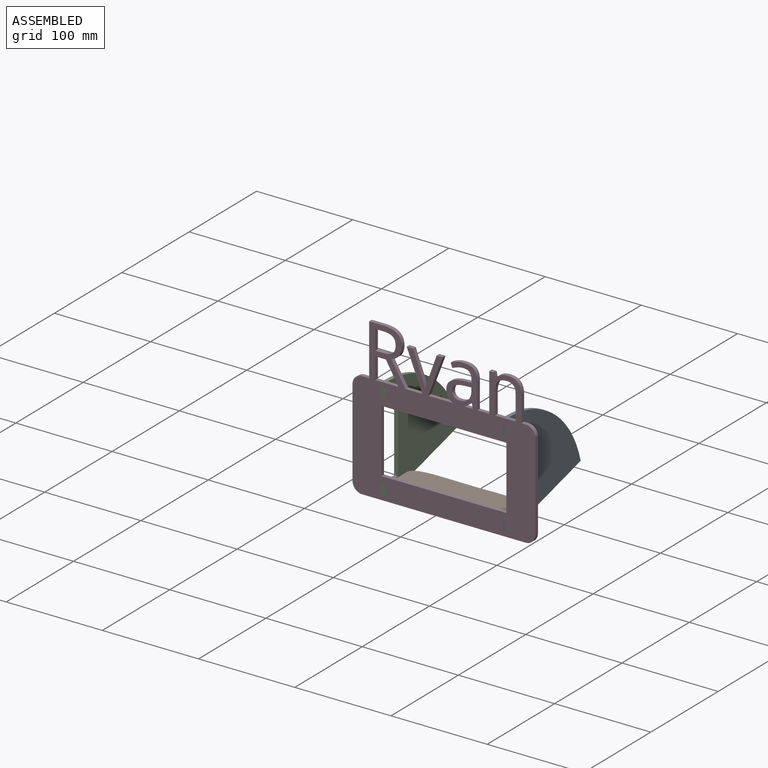
[diagram: assembled view]
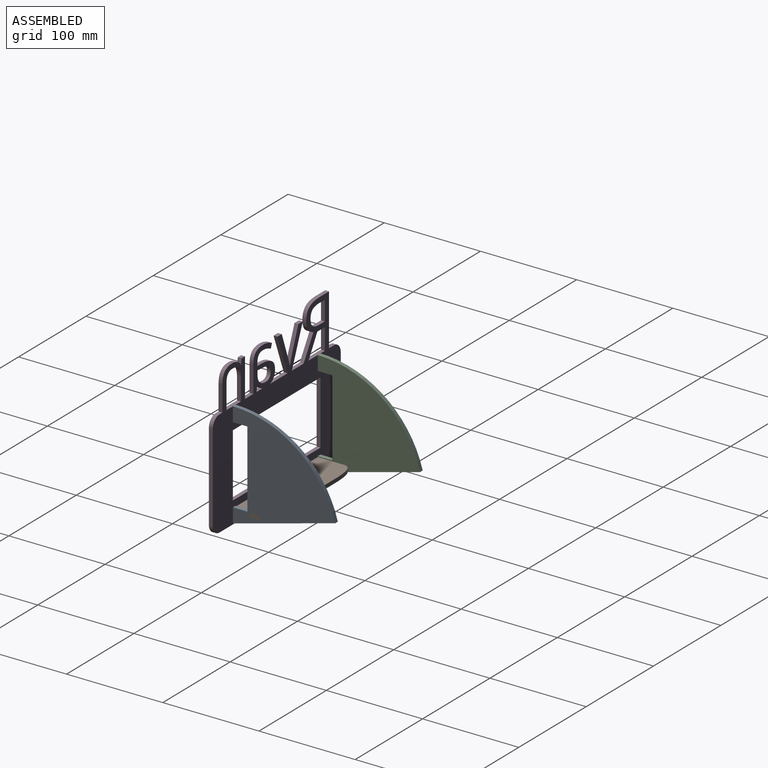
[diagram: assembled view, second angle]
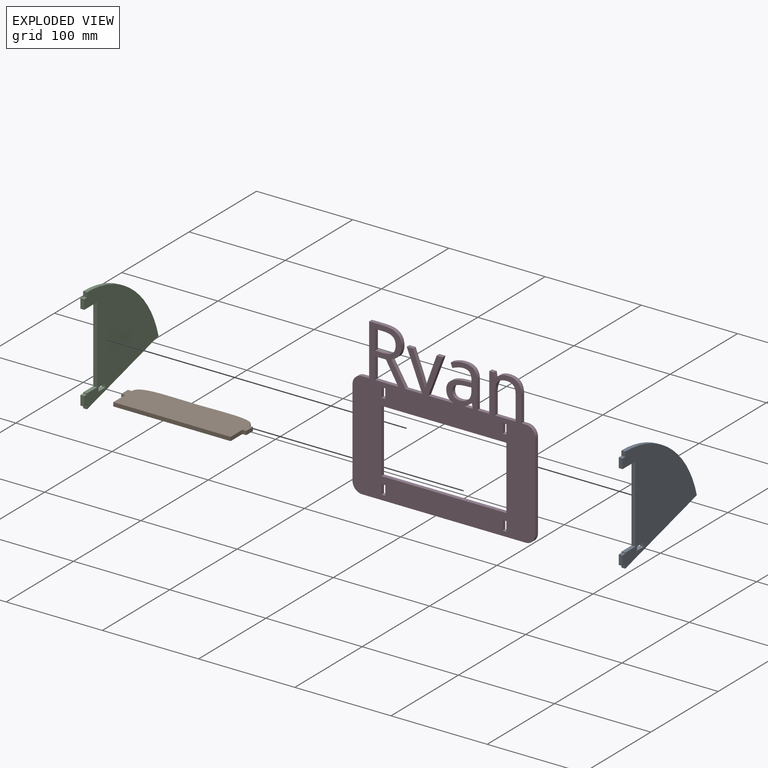
[diagram: exploded view]
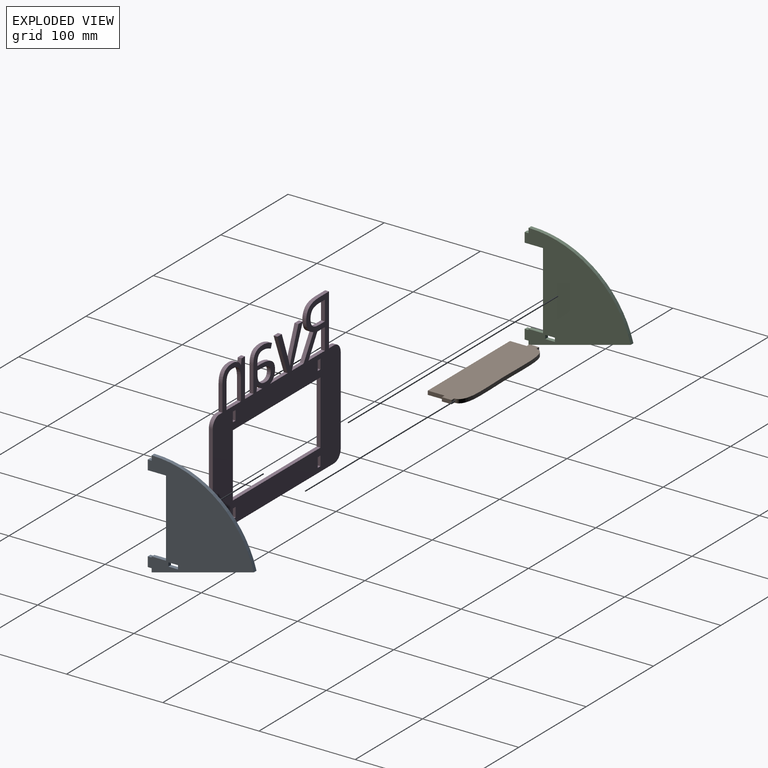
[diagram: exploded view, second angle]
ASSEMBLY  parts=4 mates=3
PART A: 19 faces, bbox 4x110.3x110 mm
  f0: plane 4x4mm, normal (0,1,0), area 16mm2, adj f1,f16,f17,f18
  f1: plane 10x4mm, normal (0,0,-1), area 40mm2, adj f0,f2,f17,f18
  f2: plane 4x4mm, normal (0,-1,0), area 16mm2, adj f1,f16,f17,f18
  f3: plane 4x4mm, normal (0,0,-1), area 16mm2, adj f4,f15,f17,f18
  f4: plane 4x4mm, normal (0,-1,0), area 16mm2, adj f3,f5,f17,f18
  f5: plane 106.25x28.47mm, normal (0,0.26,-0.97), area 440mm2, adj f4,f6,f17,f18
  f6: cylinder r=110mm len=106.25mm, axis (-1,0,0), area 576mm2, adj f5,f7,f17,f18
  f7: plane 5x4mm, normal (0,-1,0), area 20mm2, adj f6,f8,f17,f18
  f8: plane 4x4mm, normal (0,0,1), area 16mm2, adj f7,f9,f17,f18
  f9: plane 10x4mm, normal (0,-1,0), area 40mm2, adj f8,f10,f17,f18
  f10: plane 19x4mm, normal (0,0,-1), area 76mm2, adj f9,f11,f17,f18
  f11: plane 80x4mm, normal (0,-1,0), area 320mm2, adj f10,f12,f17,f18
  f12: plane 15x4mm, normal (0,0,1), area 60mm2, adj f11,f13,f17,f18
  f13: plane 4x1mm, normal (0,-1,0), area 4mm2, adj f12,f14,f17,f18
  f14: plane 4x4mm, normal (0,0,1), area 16mm2, adj f13,f15,f17,f18
  f15: plane 10x4mm, normal (0,-1,0), area 40mm2, adj f3,f14,f17,f18
  f16: plane 10x4mm, normal (0,0,1), area 40mm2, adj f0,f2,f17,f18
  f17: plane 110.25x110mm, normal (1,0,0), area 6759.4mm2, adj f0,f1,f2,f3,f4,f5,f6,f7
  f18: plane 110.25x110mm, normal (-1,0,0), area 6759.4mm2, adj f0,f1,f2,f3,f4,f5,f6,f7
PART B: 12 faces, bbox 130x41.1x4 mm
  f0: extruded ~122x10.17mm, area 524.1mm2, adj f1,f9,f10,f11
  f1: plane 4x4mm, normal (0,1,0), area 16mm2, adj f0,f2,f10,f11
  f2: plane 10x4mm, normal (-1,0,0), area 40mm2, adj f1,f3,f10,f11
  f3: plane 4x4mm, normal (0,-1,0), area 16mm2, adj f2,f4,f10,f11
  f4: plane 17.5x4mm, normal (-1,0,0), area 70mm2, adj f3,f5,f10,f11
  f5: plane 122x4mm, normal (0,-1,0), area 488mm2, adj f4,f6,f10,f11
  f6: plane 17.5x4mm, normal (1,0,0), area 70mm2, adj f5,f7,f10,f11
  f7: plane 4x4mm, normal (0,-1,0), area 16mm2, adj f6,f8,f10,f11
  f8: plane 10x4mm, normal (1,0,0), area 40mm2, adj f7,f9,f10,f11
  f9: plane 4x4mm, normal (0,1,0), area 16mm2, adj f0,f8,f10,f11
  f10: plane 130x41.09mm, normal (0,0,1), area 4555.9mm2, adj f0,f1,f2,f3,f4,f5,f6,f7
  f11: plane 130x41.09mm, normal (0,0,-1), area 4555.9mm2, adj f0,f1,f2,f3,f4,f5,f6,f7
PART C: same geometry as A
PART D: 103 faces, bbox 190x4x164.5 mm
  f0: plane 4x4mm, normal (0,0,1), area 16mm2, adj f1,f100,f101,f102
  f1: plane 10x4mm, normal (1,0,0), area 40mm2, adj f0,f2,f101,f102
  f2: plane 4x4mm, normal (0,0,-1), area 16mm2, adj f1,f100,f101,f102
  f3: plane 4x4mm, normal (0,0,1), area 16mm2, adj f4,f90,f101,f102
  f4: plane 10x4mm, normal (1,0,0), area 40mm2, adj f3,f5,f101,f102
  f5: plane 4x4mm, normal (0,0,-1), area 16mm2, adj f4,f90,f101,f102
  f6: plane 10x4mm, normal (1,0,0), area 40mm2, adj f7,f91,f101,f102
  f7: plane 4x4mm, normal (0,0,-1), area 16mm2, adj f6,f8,f101,f102
  f8: plane 10x4mm, normal (-1,0,0), area 40mm2, adj f7,f91,f101,f102
  f9: plane 10x4mm, normal (1,0,0), area 40mm2, adj f10,f92,f101,f102
  f10: plane 4x4mm, normal (0,0,-1), area 16mm2, adj f9,f11,f101,f102
  f11: plane 10x4mm, normal (-1,0,0), area 40mm2, adj f10,f92,f101,f102
  f12: plane 66x4mm, normal (1,0,0), area 264mm2, adj f13,f93,f101,f102
  f13: plane 130x4mm, normal (0,0,-1), area 520mm2, adj f12,f14,f101,f102
  f14: plane 66x4mm, normal (-1,0,0), area 264mm2, adj f13,f93,f101,f102
  f15: extruded ~8.91x4mm, area 38.7mm2, adj f16,f94,f101,f102
  f16: extruded ~5.57x4mm, area 23.8mm2, adj f15,f17,f101,f102
  f17: extruded ~5.01x4mm, area 22.3mm2, adj f16,f18,f101,f102
  f18: extruded ~6.2x4mm, area 29.2mm2, adj f17,f19,f101,f102
  f19: extruded ~10.44x4mm, area 43.1mm2, adj f18,f20,f101,f102
  f20: plane 6.07x4mm, normal (0.04,0,-1), area 24.3mm2, adj f19,f21,f101,f102
  f21: plane 4x3.62mm, normal (-1,0,0), area 14.5mm2, adj f20,f94,f101,f102
  f22: plane 22.23x12.94mm, normal (-0.86,0,-0.5), area 102.9mm2, adj f23,f95,f101,f102
  f23: plane 24.1x4mm, normal (0,0,1), area 96.4mm2, adj f22,f24,f101,f102
  f24: plane 22.23x4mm, normal (1,0,0), area 88.9mm2, adj f23,f95,f101,f102
  f25: plane 8.53x4mm, normal (0,0,1), area 34.1mm2, adj f26,f96,f101,f102
  f26: plane 20.44x4mm, normal (1,0,0), area 81.8mm2, adj f25,f27,f101,f102
  f27: plane 8.09x4mm, normal (0,0,-1), area 32.3mm2, adj f26,f28,f101,f102
  f28: extruded ~10.04x4mm, area 41.9mm2, adj f27,f29,f101,f102
  f29: extruded ~7.64x4mm, area 34.3mm2, adj f28,f30,f101,f102
  f30: extruded ~7.85x4mm, area 34.8mm2, adj f29,f96,f101,f102
  f31: plane 21.36x4mm, normal (0,0,1), area 85.4mm2, adj f32,f97,f101,f102
  f32: plane 21.03x4mm, normal (1,0,0), area 84.1mm2, adj f31,f33,f101,f102
  f33: extruded ~11.23x4mm, area 47.3mm2, adj f32,f34,f101,f102
  f34: extruded ~9.21x4mm, area 40.5mm2, adj f33,f35,f101,f102
  f35: extruded ~6.99x4mm, area 30.5mm2, adj f34,f36,f101,f102
  f36: extruded ~7.31x4mm, area 31.3mm2, adj f35,f97,f101,f102
  f37: plane 9.11x4mm, normal (0,0,1), area 36.4mm2, adj f38,f98,f101,f102
  f38: extruded ~4x1.64mm, area 7mm2, adj f37,f39,f101,f102
  f39: extruded ~5.97x5.11mm, area 31.7mm2, adj f38,f40,f101,f102
  f40: plane 4x0.29mm, normal (0,0,-1), area 1.2mm2, adj f39,f98,f101,f102
  f41: plane 40.08x16.08mm, normal (-0.93,0,-0.37), area 172.7mm2, adj f42,f99,f101,f102
  f42: plane 17.43x4mm, normal (0,0,1), area 69.7mm2, adj f41,f43,f101,f102
  f43: plane 24.02x14.52mm, normal (0.86,0,0.52), area 112.3mm2, adj f42,f44,f101,f102
  f44: extruded ~14.33x10.75mm, area 77.3mm2, adj f43,f45,f101,f102
  f45: extruded ~11.34x4.7mm, area 50.9mm2, adj f44,f46,f101,f102
  f46: extruded ~14.54x4mm, area 61.2mm2, adj f45,f47,f101,f102
  f47: plane 14.66x4mm, normal (0,0,1), area 58.6mm2, adj f46,f48,f101,f102
  f48: plane 53.46x4mm, normal (-1,0,0), area 213.9mm2, adj f47,f49,f101,f102
  f49: plane 7.35x4mm, normal (0,0,1), area 29.4mm2, adj f48,f50,f101,f102
  f50: cylinder r=10mm len=10mm, axis (0,1,0), area 62.8mm2, adj f49,f51,f101,f102
  f51: plane 91x4mm, normal (-1,0,0), area 364mm2, adj f50,f52,f101,f102
  f52: cylinder r=10mm len=10mm, axis (0,1,0), area 62.8mm2, adj f51,f53,f101,f102
  f53: plane 170x4mm, normal (0,0,-1), area 680mm2, adj f52,f54,f101,f102
  f54: cylinder r=10mm len=10mm, axis (0,1,0), area 62.8mm2, adj f53,f55,f101,f102
  f55: plane 91x4mm, normal (1,0,0), area 364mm2, adj f54,f56,f101,f102
  f56: cylinder r=10mm len=10mm, axis (0,1,0), area 62.8mm2, adj f55,f57,f101,f102
  f57: plane 4.39x4mm, normal (0,0,1), area 17.6mm2, adj f56,f58,f101,f102
  f58: plane 26.14x4mm, normal (1,0,0), area 104.6mm2, adj f57,f59,f101,f102
  f59: extruded ~11.18x4mm, area 48.4mm2, adj f58,f60,f101,f102
  f60: extruded ~10.9x4mm, area 46.9mm2, adj f59,f61,f101,f102
  f61: extruded ~7.49x4mm, area 30.9mm2, adj f60,f62,f101,f102
  f62: extruded ~5.24x4.59mm, area 28.2mm2, adj f61,f63,f101,f102
  f63: plane 4x0.29mm, normal (0,0,1), area 1.2mm2, adj f62,f64,f101,f102
  f64: plane 5.49x4mm, normal (0.98,0,0.18), area 22.3mm2, adj f63,f65,f101,f102
  f65: plane 4.94x4mm, normal (0,0,1), area 19.8mm2, adj f64,f66,f101,f102
  f66: plane 40.08x4mm, normal (-1,0,0), area 160.3mm2, adj f65,f67,f101,f102
  f67: plane 12.5x4mm, normal (0,0,1), area 50mm2, adj f66,f68,f101,f102
  f68: plane 27.36x4mm, normal (1,0,0), area 109.4mm2, adj f67,f69,f101,f102
  f69: extruded ~10.2x4mm, area 44.3mm2, adj f68,f70,f101,f102
  f70: extruded ~10.62x4mm, area 45.4mm2, adj f69,f71,f101,f102
  f71: extruded ~7.09x4mm, area 28.7mm2, adj f70,f72,f101,f102
  f72: extruded ~6.49x4mm, area 27.9mm2, adj f71,f73,f101,f102
  f73: plane 4.65x4mm, normal (-0.93,0,-0.37), area 20mm2, adj f72,f74,f101,f102
  f74: extruded ~11.33x4mm, area 47.3mm2, adj f73,f75,f101,f102
  f75: extruded ~6.49x4mm, area 28.3mm2, adj f74,f76,f101,f102
  f76: extruded ~6.96x4mm, area 29.6mm2, adj f75,f77,f101,f102
  f77: plane 4x2.49mm, normal (-1,0,0), area 10mm2, adj f76,f78,f101,f102
  f78: plane 6.8x4mm, normal (-0.03,0,1), area 27.2mm2, adj f77,f79,f101,f102
  f79: extruded ~19.41x12.72mm, area 104.3mm2, adj f78,f80,f101,f102
  f80: extruded ~8.74x4mm, area 38.7mm2, adj f79,f81,f101,f102
  f81: extruded ~4.12x4mm, area 19.1mm2, adj f80,f82,f101,f102
  f82: plane 26.14x4mm, normal (0,0,1), area 104.6mm2, adj f81,f83,f101,f102
  f83: plane 40.08x15.13mm, normal (0.94,0,-0.35), area 171.3mm2, adj f82,f84,f101,f102
  f84: plane 6.51x4mm, normal (0,0,1), area 26mm2, adj f83,f85,f101,f102
  f85: extruded ~27.77x9.93mm, area 118mm2, adj f84,f86,f101,f102
  f86: extruded ~6.39x4mm, area 26.8mm2, adj f85,f87,f101,f102
  f87: plane 4x0.29mm, normal (0,0,1), area 1.2mm2, adj f86,f88,f101,f102
  f88: extruded ~11.3x4mm, area 47.5mm2, adj f87,f89,f101,f102
  f89: plane 22.85x8.78mm, normal (0.93,0,0.36), area 97.9mm2, adj f88,f99,f101,f102
  f90: plane 10x4mm, normal (-1,0,0), area 40mm2, adj f3,f5,f101,f102
  f91: plane 4x4mm, normal (0,0,1), area 16mm2, adj f6,f8,f101,f102
  f92: plane 4x4mm, normal (0,0,1), area 16mm2, adj f9,f11,f101,f102
  f93: plane 130x4mm, normal (0,0,1), area 520mm2, adj f12,f14,f101,f102
  f94: extruded ~8.7x4mm, area 38.2mm2, adj f15,f21,f101,f102
  f95: plane 11.16x4mm, normal (0,0,-1), area 44.7mm2, adj f22,f24,f101,f102
  f96: extruded ~9.65x4mm, area 40.8mm2, adj f25,f30,f101,f102
  f97: plane 25.93x4mm, normal (-1,0,0), area 103.7mm2, adj f31,f36,f101,f102
  f98: plane 5.71x4mm, normal (-0.98,0,-0.21), area 23.3mm2, adj f37,f40,f101,f102
  f99: plane 6.52x4mm, normal (0,0,1), area 26.1mm2, adj f41,f89,f101,f102
  f100: plane 10x4mm, normal (-1,0,0), area 40mm2, adj f0,f2,f101,f102
  f101: plane 190x164.46mm, normal (0,-1,0), area 14799.3mm2, adj f0,f1,f2,f3,f4,f5,f6,f7
  f102: plane 190x164.46mm, normal (0,1,0), area 14799.3mm2, adj f0,f1,f2,f3,f4,f5,f6,f7
PLACE A t=(75,48.18,-49.95)mm
PLACE B t=(14,61.84,-39.8)mm
PLACE C t=(-51,48.18,-49.95)mm
PLACE D t=(14,48.18,4.55)mm
MATE fastened B.f8 <-> A.f17  axis (1,0,0) through (79,65.59,-39.8)mm
MATE fastened D.f101 <-> A.f9  axis (0,-1,0) through (75,44.18,45.05)mm
MATE fastened C.f18 <-> B.f2  axis (-1,0,0) through (-51,75.59,-39.8)mm
